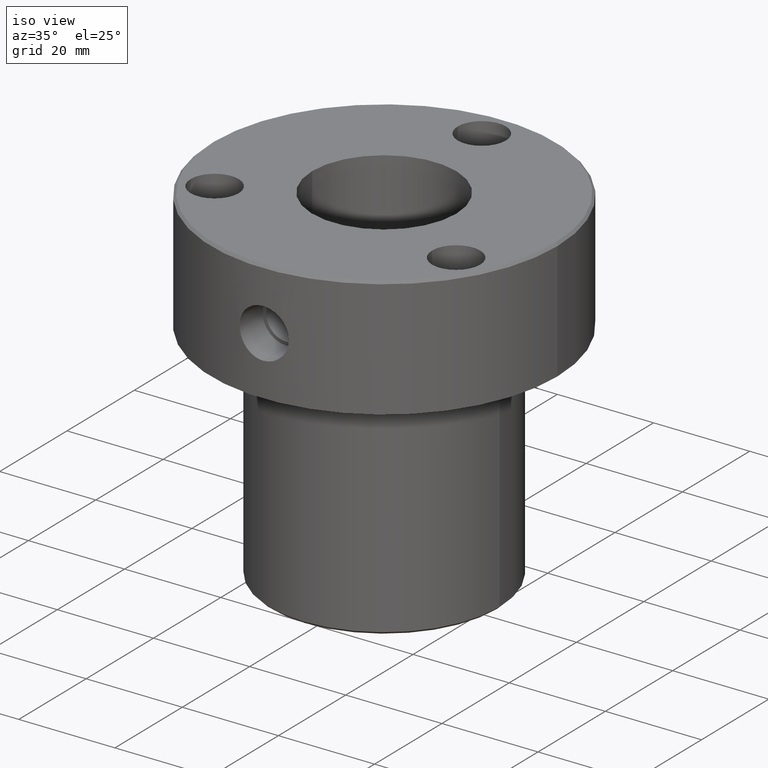
[diagram: clean part render]
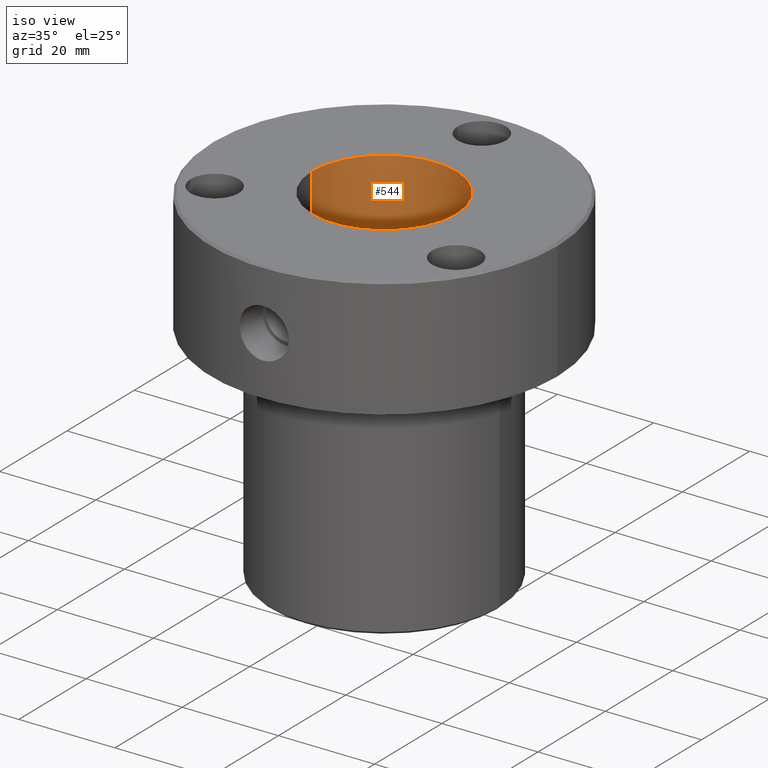
[diagram: same view with one face highlighted and labeled with its STEP entity id]
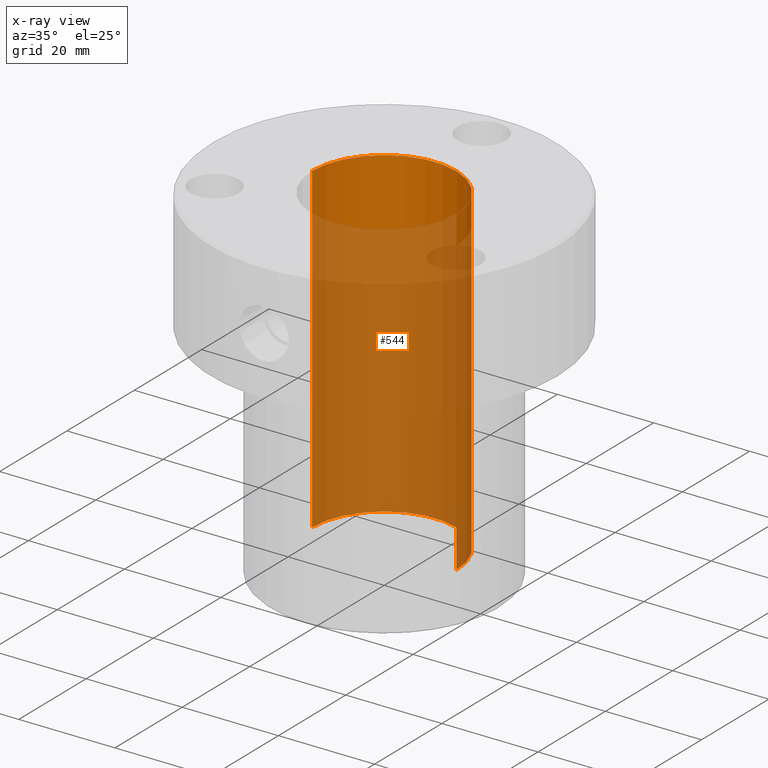
[diagram: x-ray of the same camera — body ghosted, the highlighted face saturated]
A machine part, iso view. The second image highlights one B-rep face of the part: STEP entity #544.
The next image is the same camera in x-ray: the body ghosted, the highlighted face saturated — about 82% of this face is hidden behind the body in this view.
In plain terms, the highlighted cylindrical surface (partial cylindrical patch) has radius 15 mm, axis along (-0, -0, -1).
Its self-contained STEP definition (entity closure, byte-faithful):
#11 = AXIS2_PLACEMENT_3D ( 'NONE', #1087, #782, #1069 ) ;
#23 = DIRECTION ( 'NONE',  ( -0.000000000000000000, -0.000000000000000000, -1.000000000000000000 ) ) ;
#41 = DIRECTION ( 'NONE',  ( -1.000000000000000000, 0.000000000000000000, 0.000000000000000000 ) ) ;
#84 = EDGE_CURVE ( 'NONE', #325, #783, #1148, .T. ) ;
#136 = DIRECTION ( 'NONE',  ( -0.000000000000000000, -0.000000000000000000, -1.000000000000000000 ) ) ;
#141 = CARTESIAN_POINT ( 'NONE',  ( 15.00000000000000000, 1.836970198721029589E-15, -66.99999999999998579 ) ) ;
#150 = ORIENTED_EDGE ( 'NONE', *, *, #836, .T. ) ;
#151 = CIRCLE ( 'NONE', #991, 15.00000000000000000 ) ;
#191 = CIRCLE ( 'NONE', #11, 15.00000000000000000 ) ;
#273 = CARTESIAN_POINT ( 'NONE',  ( -15.00000000000000000, 0.000000000000000000, -66.99999999999998579 ) ) ;
#284 = ORIENTED_EDGE ( 'NONE', *, *, #1001, .F. ) ;
#317 = DIRECTION ( 'NONE',  ( -1.000000000000000000, 0.000000000000000000, 0.000000000000000000 ) ) ;
#325 = VERTEX_POINT ( 'NONE', #569 ) ;
#416 = CARTESIAN_POINT ( 'NONE',  ( 0.000000000000000000, 0.000000000000000000, -66.99999999999998579 ) ) ;
#459 = ORIENTED_EDGE ( 'NONE', *, *, #84, .T. ) ;
#470 = EDGE_CURVE ( 'NONE', #1124, #966, #773, .T. ) ;
#544 = ADVANCED_FACE ( 'NONE', ( #809 ), #636, .F. ) ;
#569 = CARTESIAN_POINT ( 'NONE',  ( -15.00000000000000000, 0.000000000000000000, 0.000000000000000000 ) ) ;
#611 = CARTESIAN_POINT ( 'NONE',  ( 15.00000000000000000, 1.836970198721029589E-15, 0.000000000000000000 ) ) ;
#636 = CYLINDRICAL_SURFACE ( 'NONE', #830, 15.00000000000000000 ) ;
#742 = DIRECTION ( 'NONE',  ( -0.000000000000000000, -0.000000000000000000, -1.000000000000000000 ) ) ;
#763 = CARTESIAN_POINT ( 'NONE',  ( -15.00000000000000000, 0.000000000000000000, 0.000000000000000000 ) ) ;
#773 = LINE ( 'NONE', #611, #811 ) ;
#782 = DIRECTION ( 'NONE',  ( 0.000000000000000000, 0.000000000000000000, -1.000000000000000000 ) ) ;
#783 = VERTEX_POINT ( 'NONE', #273 ) ;
#809 = FACE_OUTER_BOUND ( 'NONE', #1011, .T. ) ;
#811 = VECTOR ( 'NONE', #23, 1000.000000000000000 ) ;
#821 = CARTESIAN_POINT ( 'NONE',  ( 0.000000000000000000, 0.000000000000000000, 0.000000000000000000 ) ) ;
#822 = ORIENTED_EDGE ( 'NONE', *, *, #470, .F. ) ;
#830 = AXIS2_PLACEMENT_3D ( 'NONE', #821, #136, #41 ) ;
#833 = VECTOR ( 'NONE', #742, 1000.000000000000000 ) ;
#836 = EDGE_CURVE ( 'NONE', #783, #966, #151, .T. ) ;
#966 = VERTEX_POINT ( 'NONE', #141 ) ;
#991 = AXIS2_PLACEMENT_3D ( 'NONE', #416, #1079, #317 ) ;
#1001 = EDGE_CURVE ( 'NONE', #325, #1124, #191, .T. ) ;
#1011 = EDGE_LOOP ( 'NONE', ( #822, #284, #459, #150 ) ) ;
#1064 = CARTESIAN_POINT ( 'NONE',  ( 15.00000000000000000, 1.836970198721029589E-15, 0.000000000000000000 ) ) ;
#1069 = DIRECTION ( 'NONE',  ( -1.000000000000000000, 0.000000000000000000, 0.000000000000000000 ) ) ;
#1079 = DIRECTION ( 'NONE',  ( 0.000000000000000000, 0.000000000000000000, -1.000000000000000000 ) ) ;
#1087 = CARTESIAN_POINT ( 'NONE',  ( 0.000000000000000000, 0.000000000000000000, 0.000000000000000000 ) ) ;
#1124 = VERTEX_POINT ( 'NONE', #1064 ) ;
#1148 = LINE ( 'NONE', #763, #833 ) ;